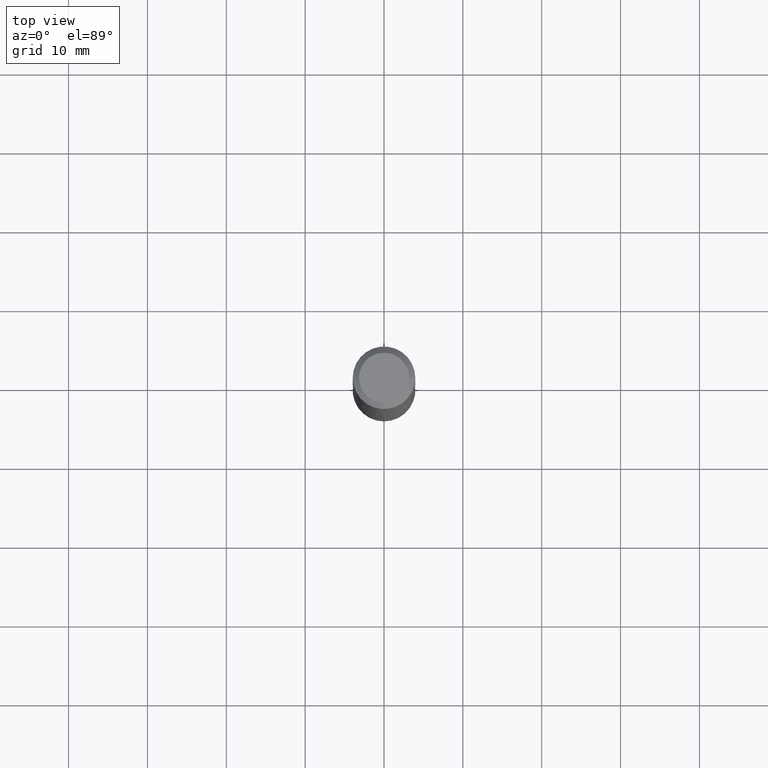
[diagram: clean part render]
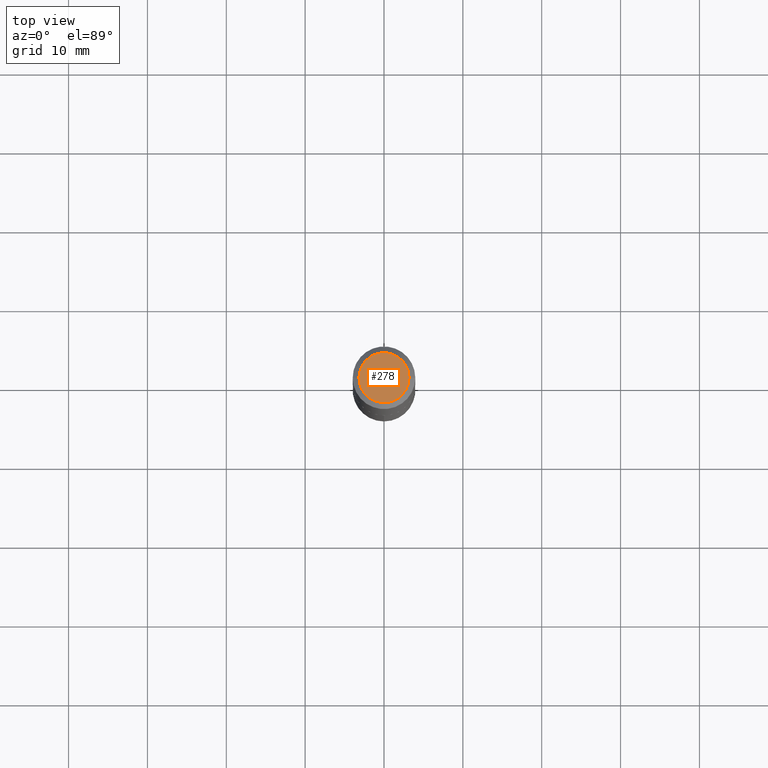
[diagram: same view with one face highlighted and labeled with its STEP entity id]
A machine part, top view. The second image highlights one B-rep face of the part: STEP entity #278.
In plain terms, the highlighted planar face has unit normal (0, -0, -1).
Its self-contained STEP definition (entity closure, byte-faithful):
#3 = VERTEX_POINT ( 'NONE', #53 ) ;
#10 = DIRECTION ( 'NONE',  ( -2.445468806185136597E-29, 3.491481338843145583E-15, 1.000000000000000000 ) ) ;
#16 = EDGE_CURVE ( 'NONE', #222, #3, #209, .T. ) ;
#21 = DIRECTION ( 'NONE',  ( 2.438088387897960049E-29, -3.491481338843145188E-15, -1.000000000000000000 ) ) ;
#53 = CARTESIAN_POINT ( 'NONE',  ( 0.1250000000000000000, -1.019311926856046176E-15, 3.827021247342097808E-18 ) ) ;
#82 = AXIS2_PLACEMENT_3D ( 'NONE', #337, #304, #373 ) ;
#84 = CARTESIAN_POINT ( 'NONE',  ( -0.1250000000000000000, 9.274247306302067059E-16, 3.827021247329187915E-18 ) ) ;
#87 = CIRCLE ( 'NONE', #380, 0.1250000000000000000 ) ;
#114 = EDGE_CURVE ( 'NONE', #3, #222, #87, .T. ) ;
#131 = CARTESIAN_POINT ( 'NONE',  ( -9.358861080966655793E-47, 1.336197326842805586E-32, 3.827021247335482624E-18 ) ) ;
#132 = DIRECTION ( 'NONE',  ( 1.000000000000000000, -6.982962677686266711E-15, 4.876242311950517246E-29 ) ) ;
#151 = ORIENTED_EDGE ( 'NONE', *, *, #114, .T. ) ;
#209 = CIRCLE ( 'NONE', #82, 0.1250000000000000000 ) ;
#214 = FACE_OUTER_BOUND ( 'NONE', #384, .T. ) ;
#220 = DIRECTION ( 'NONE',  ( -1.000000000000000000, 6.982962677686265922E-15, -4.876176775795935793E-29 ) ) ;
#222 = VERTEX_POINT ( 'NONE', #84 ) ;
#235 = AXIS2_PLACEMENT_3D ( 'NONE', #369, #21, #220 ) ;
#246 = ORIENTED_EDGE ( 'NONE', *, *, #16, .T. ) ;
#278 = ADVANCED_FACE ( 'NONE', ( #214 ), #297, .F. ) ;
#297 = PLANE ( 'NONE',  #235 ) ;
#304 = DIRECTION ( 'NONE',  ( -2.445468806185136597E-29, 3.491481338843145583E-15, 1.000000000000000000 ) ) ;
#337 = CARTESIAN_POINT ( 'NONE',  ( -9.358861080966655793E-47, 1.336197326842805586E-32, 3.827021247335482624E-18 ) ) ;
#369 = CARTESIAN_POINT ( 'NONE',  ( -4.679430540483327897E-47, 6.680986634214027929E-33, 1.913510623667741312E-18 ) ) ;
#373 = DIRECTION ( 'NONE',  ( 1.000000000000000000, -6.982962677686266711E-15, 4.876242311950517246E-29 ) ) ;
#380 = AXIS2_PLACEMENT_3D ( 'NONE', #131, #10, #132 ) ;
#384 = EDGE_LOOP ( 'NONE', ( #246, #151 ) ) ;